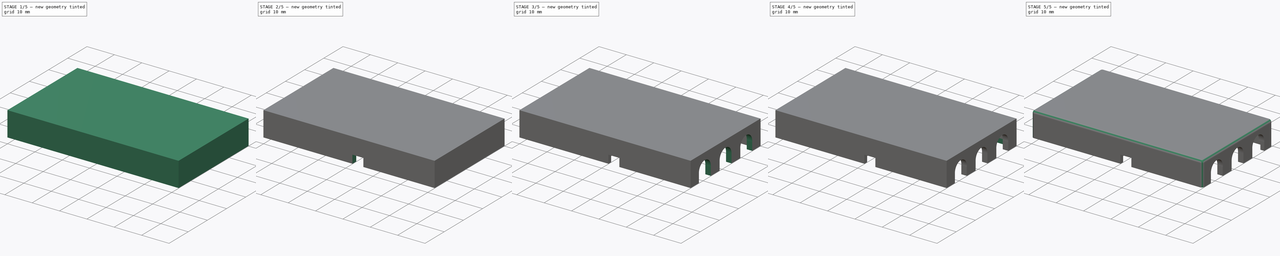
[diagram: build sequence overview — one tinted view per stage of 5, left to right]
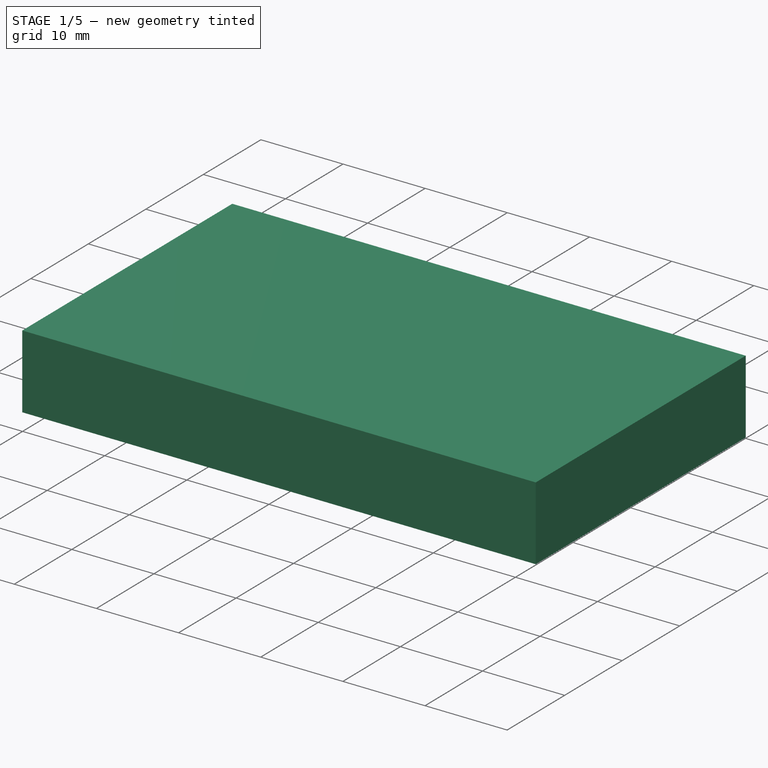
[diagram: stage 1 of 5 — iso view after this stage's code; geometry added in this stage tinted green]
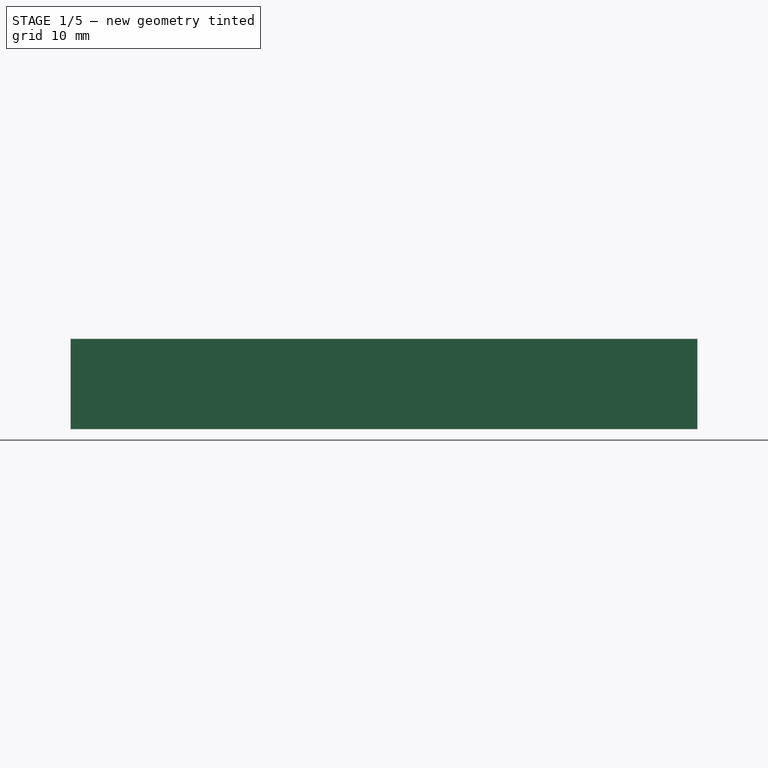
[diagram: stage 1 of 5 — front view after this stage's code; geometry added in this stage tinted green]
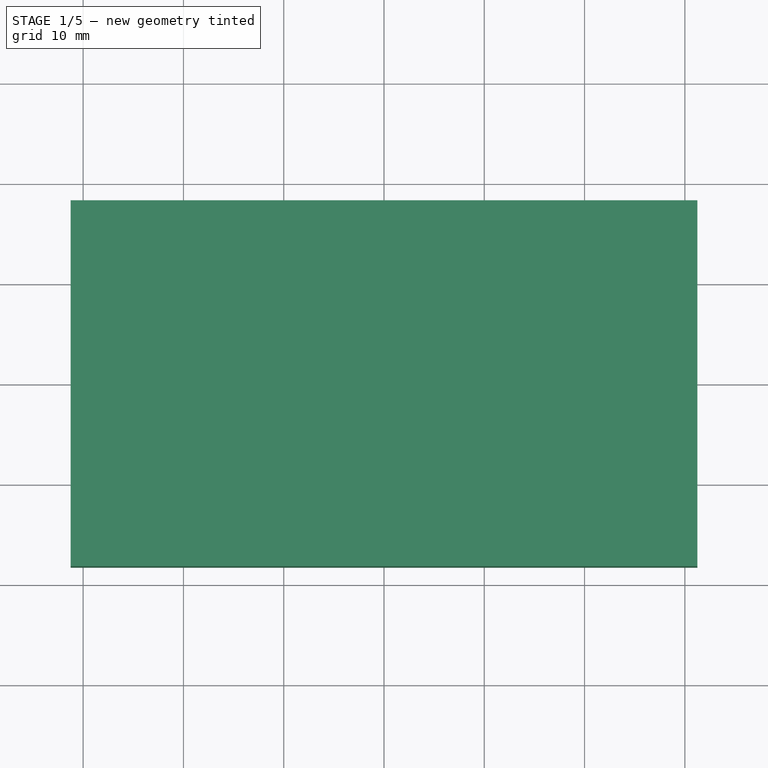
[diagram: stage 1 of 5 — top view after this stage's code; geometry added in this stage tinted green]
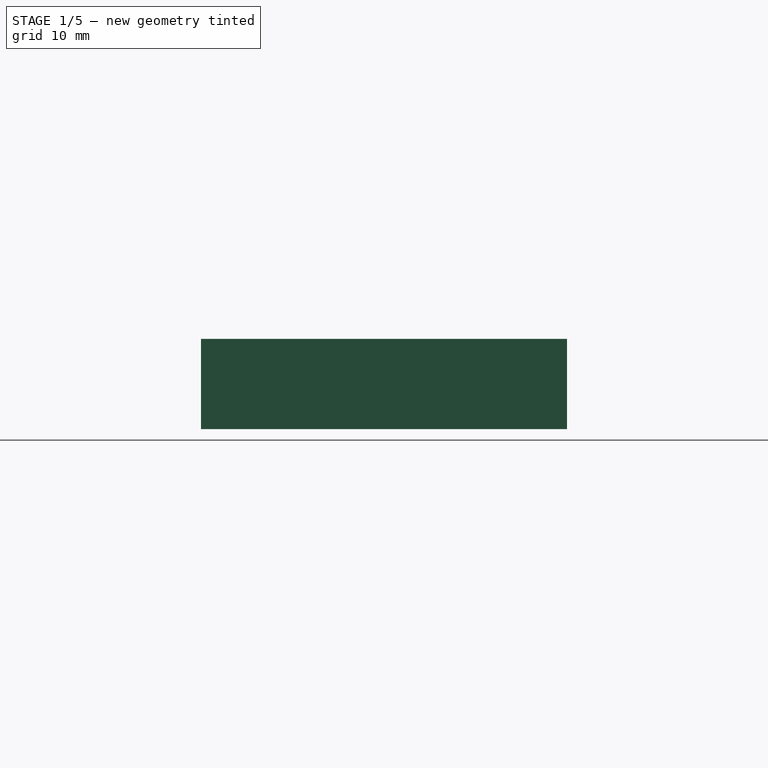
[diagram: stage 1 of 5 — right view after this stage's code; geometry added in this stage tinted green]
FCSTD DOCUMENT  (FreeCAD 0.21R33771 (Git))
Label: UM2S-case-top
License: All rights reserved
LicenseURL: http://en.wikipedia.org/wiki/All_rights_reserved
objects: Sketcher::SketchObject×12, PartDesign::Pocket×10, PartDesign::Fillet×4, PartDesign::Pad×2, PartDesign::Body×1
note: 45 computed .brp shape members not serialized (recipe doc carries the construction recipe); baked Part::Feature solids carry a one-line shape summary decoded from their .brp

FEATURE [Sketcher::SketchObject] Sketch
  FullyConstrained = true
  MapMode = 5
  Support = -> [XY_Plane]
  sketch-geometry (5):
    g0: LineSegment StartX=-31.25 StartY=-18.25 StartZ=0 EndX=-31.25 EndY=18.25 EndZ=0
    g1: LineSegment StartX=-31.25 StartY=18.25 StartZ=0 EndX=31.25 EndY=18.25 EndZ=0
    g2: LineSegment StartX=31.25 StartY=18.25 StartZ=0 EndX=31.25 EndY=-18.25 EndZ=0
    g3: LineSegment StartX=31.25 StartY=-18.25 StartZ=0 EndX=-31.25 EndY=-18.25 EndZ=0
    g4: GeomPoint X=0 Y=0 Z=0
  constraints (12):
    c: Coincident(g0,g1)
    c: Coincident(g1,g2)
    c: Coincident(g2,g3)
    c: Coincident(g3,g0)
    c: Horizontal(g1)
    c: Horizontal(g3)
    c: Vertical(g0)
    c: Vertical(g2)
    c: Symmetric(g1,g0,g4)
    c: Coincident(g4,g-1)
    c: Distance(g3) = 62.5
    c: Distance(g0) = 36.5
FEATURE [PartDesign::Pad] Pad
  Direction = (0,0,1)
  Length = 9
  Length2 = 10
  Profile = -> Sketch
  ReferenceAxis = -> Sketch [N_Axis]
  Type = 0
FEATURE [Sketcher::SketchObject] Sketch001
  FullyConstrained = true
  MapMode = 5
  Placement = pos=(0,0,0) rot=(1,0,0;3.14159rad)
  Support = -> [Pad]
  sketch-geometry (5):
    g0: LineSegment StartX=-29.25 StartY=16.25 StartZ=0 EndX=-29.25 EndY=-16.25 EndZ=0
    g1: LineSegment StartX=-29.25 StartY=-16.25 StartZ=0 EndX=29.25 EndY=-16.25 EndZ=0
    g2: LineSegment StartX=29.25 StartY=-16.25 StartZ=0 EndX=29.25 EndY=16.25 EndZ=0
    g3: LineSegment StartX=29.25 StartY=16.25 StartZ=0 EndX=-29.25 EndY=16.25 EndZ=0
    g4: GeomPoint X=0 Y=0 Z=0
  constraints (12):
    c: Coincident(g0,g1)
    c: Coincident(g1,g2)
    c: Coincident(g2,g3)
    c: Coincident(g3,g0)
    c: Horizontal(g1)
    c: Horizontal(g3)
    c: Vertical(g0)
    c: Vertical(g2)
    c: Symmetric(g1,g0,g4)
    c: Coincident(g4,g-1)
    c: Distance(g3) = 58.5
    c: Distance(g0) = 32.5
FEATURE [PartDesign::Pocket] Pocket
  BaseFeature = -> Pad
  Direction = (0,0,1)
  Length = 7
  Length2 = 5
  Profile = -> Sketch001
  ReferenceAxis = -> Sketch001 [N_Axis]
  Type = 0
FEATURE [Sketcher::SketchObject] Sketch002
  FullyConstrained = false
  MapMode = 5
  Placement = pos=(0,0,7) rot=(1,0,0;3.14159rad)
  Support = -> [Pocket]
  sketch-geometry (1):
    g0: Circle CenterX=-4.03753 CenterY=0 CenterZ=0 NormalX=0 NormalY=0 NormalZ=1 AngleXU=0 Radius=3.09059
  constraints (1):
    c: PointOnObject(g0,g-1)
FEATURE [PartDesign::Pad] Pad001
  BaseFeature = -> Pocket
  Direction = (0,0,-1)
  Length = 6.5
  Length2 = 10
  Profile = -> Sketch002
  ReferenceAxis = -> Sketch002 [N_Axis]
  Type = 0
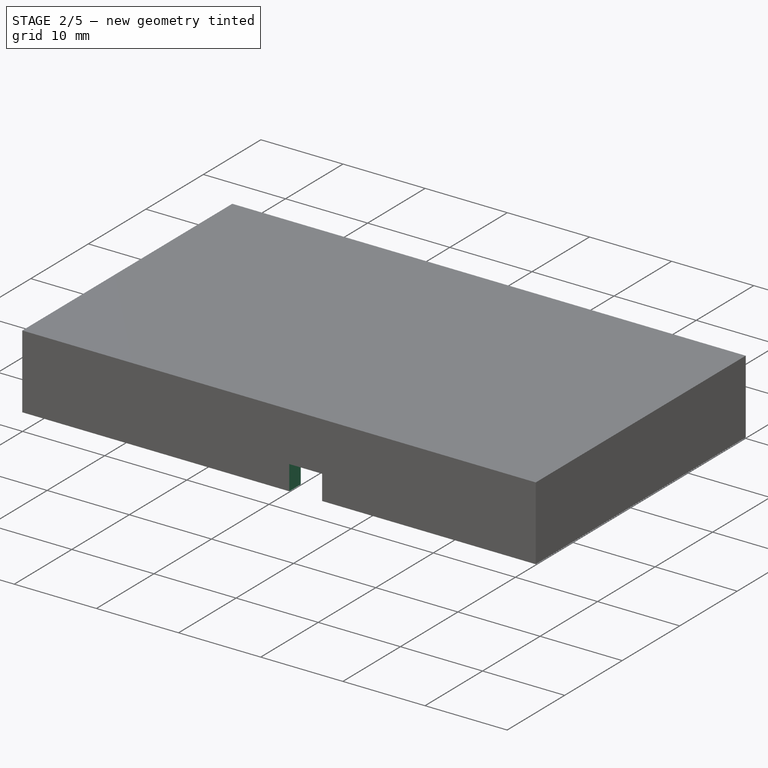
[diagram: stage 2 of 5 — iso view after this stage's code; geometry added in this stage tinted green]
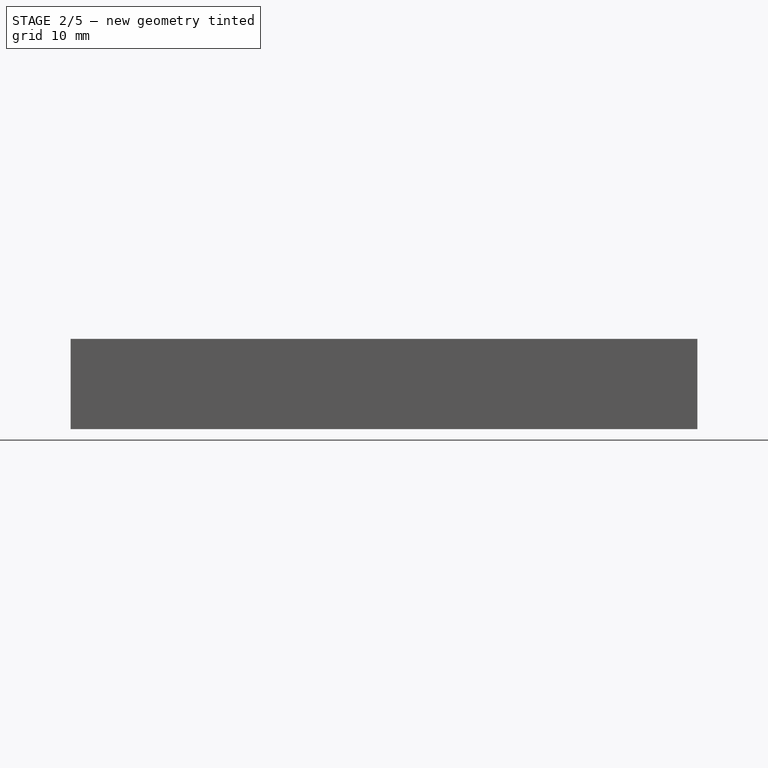
[diagram: stage 2 of 5 — front view after this stage's code; geometry added in this stage tinted green]
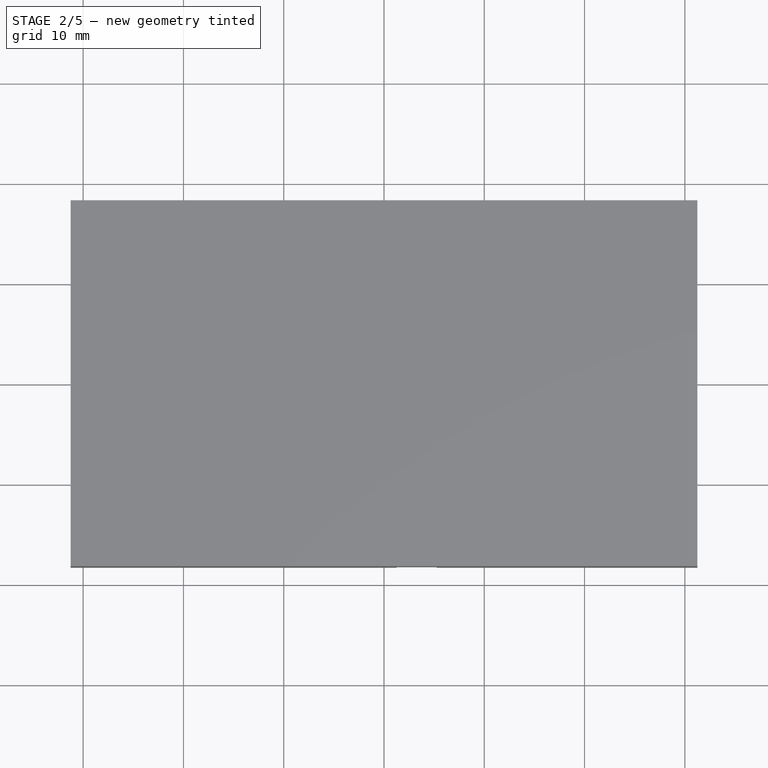
[diagram: stage 2 of 5 — top view after this stage's code; geometry added in this stage tinted green]
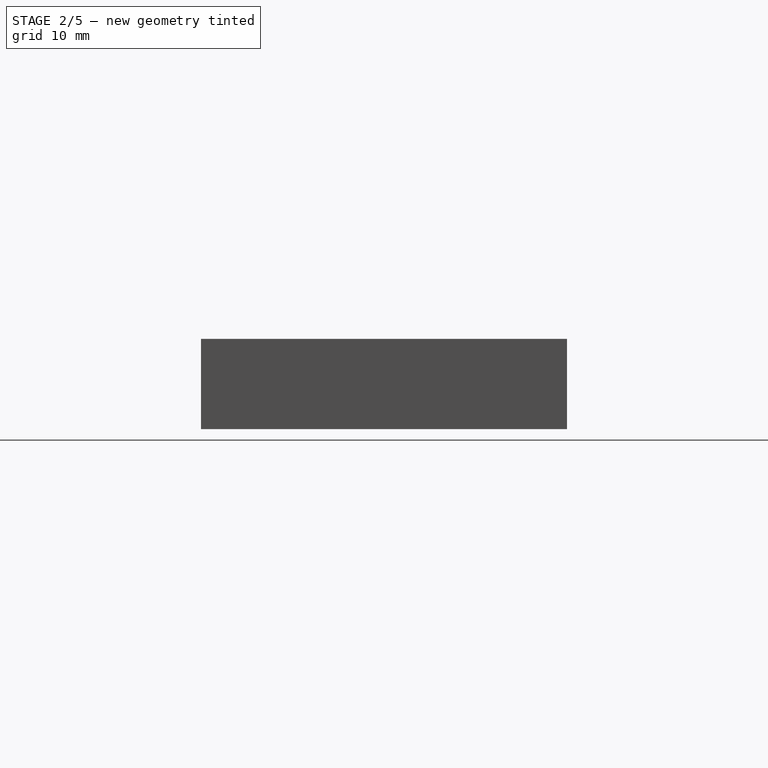
[diagram: stage 2 of 5 — right view after this stage's code; geometry added in this stage tinted green]
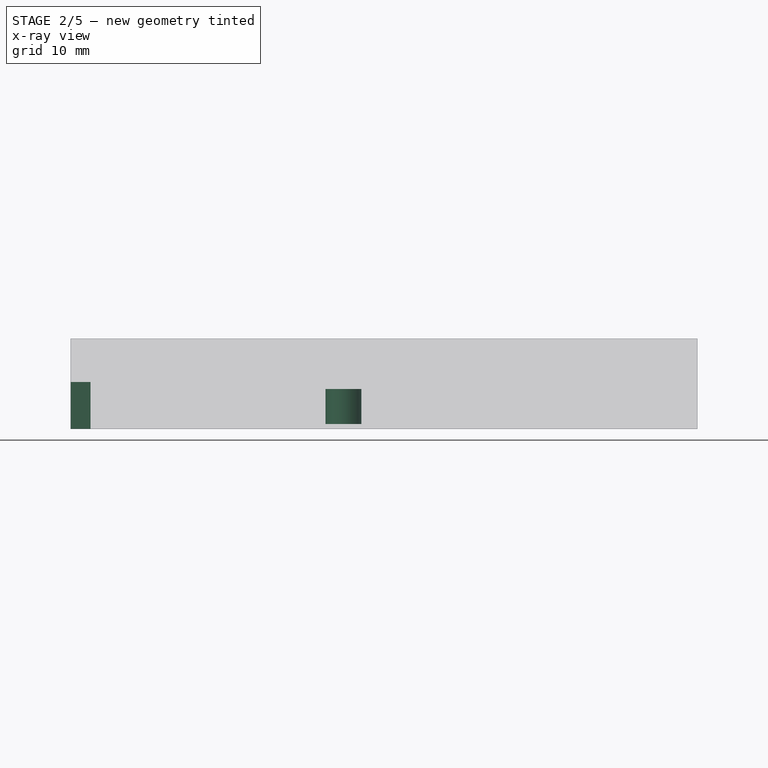
[diagram: stage 2 of 5 — x-ray composite at the front view; earlier geometry ghosted, this stage's added geometry solid]
FEATURE [Sketcher::SketchObject] Sketch003
  FullyConstrained = false
  MapMode = 5
  Placement = pos=(0,0,0.5) rot=(1,0,0;3.14159rad)
  Support = -> [Pad001]
  sketch-geometry (1):
    g0: Circle CenterX=-4.05315 CenterY=0 CenterZ=0 NormalX=0 NormalY=0 NormalZ=1 AngleXU=0 Radius=1.8
  constraints (1):
    c: Diameter(g0) = 3.6
FEATURE [PartDesign::Pocket] Pocket001
  BaseFeature = -> Pad001
  Direction = (0,0,1)
  Length = 3.5
  Length2 = 5
  Profile = -> Sketch003
  ReferenceAxis = -> Sketch003 [N_Axis]
  Type = 0
FEATURE [Sketcher::SketchObject] Sketch004
  ExternalGeometry = -> [Pocket001]
  FullyConstrained = false
  MapMode = 5
  Placement = pos=(0,0,0) rot=(1,0,0;3.14159rad)
  Support = -> [Pocket001]
  sketch-geometry (4):
    g0: LineSegment StartX=1.25 StartY=16.1784 StartZ=0 EndX=5.25 EndY=16.1784 EndZ=0
    g1: LineSegment StartX=5.25 StartY=16.1784 StartZ=0 EndX=5.25 EndY=18.3034 EndZ=0
    g2: LineSegment StartX=5.25 StartY=18.3034 StartZ=0 EndX=1.25 EndY=18.3034 EndZ=0
    g3: LineSegment StartX=1.25 StartY=18.3034 StartZ=0 EndX=1.25 EndY=16.1784 EndZ=0
  constraints (11):
    c: Coincident(g0,g1)
    c: Coincident(g1,g2)
    c: Coincident(g2,g3)
    c: Coincident(g3,g0)
    c: Horizontal(g0)
    c: Horizontal(g2)
    c: Vertical(g1)
    c: Vertical(g3)
    c: Distance(g3) = 2.125
    c: Distance(g-3,g3) = 30.5
    c: Distance(g2) = 4
FEATURE [PartDesign::Pocket] Pocket002
  BaseFeature = -> Pocket001
  Direction = (0,0,1)
  Length = 3
  Length2 = 5
  Profile = -> Sketch004
  ReferenceAxis = -> Sketch004 [N_Axis]
  Type = 0
FEATURE [Sketcher::SketchObject] Sketch005
  FullyConstrained = true
  MapMode = 5
  Placement = pos=(-31.25,0,0) rot=(0.57735,-0.57735,-0.57735;2.0944rad)
  Support = -> [Pocket002]
  sketch-geometry (4):
    g0: LineSegment StartX=-4.6 StartY=0 StartZ=0 EndX=4.6 EndY=0 EndZ=0
    g1: LineSegment StartX=4.6 StartY=0 StartZ=0 EndX=4.6 EndY=4.7 EndZ=0
    g2: LineSegment StartX=4.6 StartY=4.7 StartZ=0 EndX=-4.6 EndY=4.7 EndZ=0
    g3: LineSegment StartX=-4.6 StartY=4.7 StartZ=0 EndX=-4.6 EndY=0 EndZ=0
  constraints (12):
    c: Coincident(g0,g1)
    c: Coincident(g1,g2)
    c: Coincident(g2,g3)
    c: Coincident(g3,g0)
    c: Horizontal(g0)
    c: Horizontal(g2)
    c: Vertical(g1)
    c: Vertical(g3)
    c: PointOnObject(g0,g-1)
    c: Distance(g3) = 4.7
    c: Distance(g-1,g0) = 4.6
    c: Distance(g-1,g0) = 4.6
FEATURE [PartDesign::Pocket] Pocket003
  BaseFeature = -> Pocket002
  Direction = (1,0,0)
  Length = 5
  Length2 = 5
  Profile = -> Sketch005
  ReferenceAxis = -> Sketch005 [N_Axis]
  Type = 0
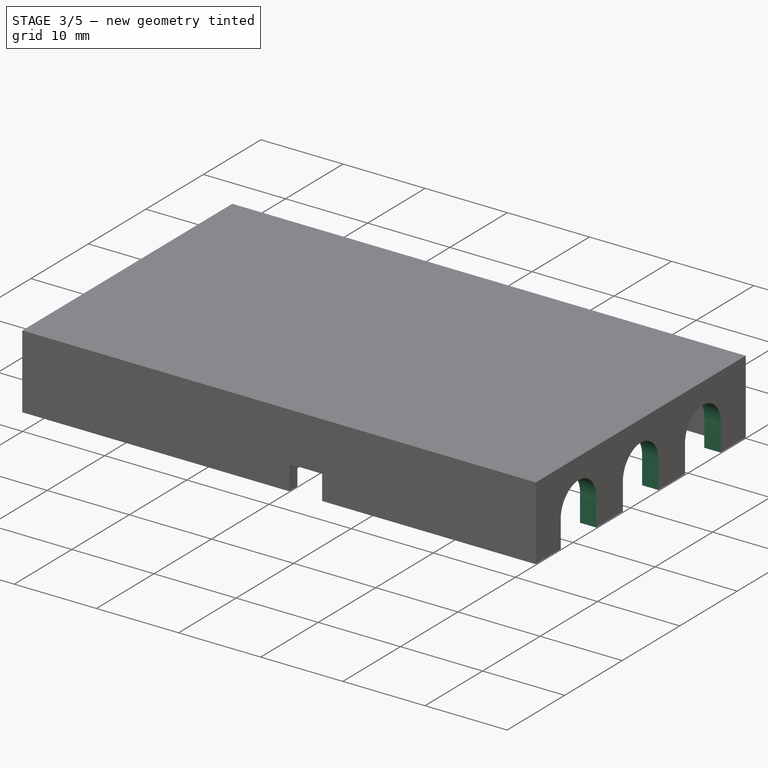
[diagram: stage 3 of 5 — iso view after this stage's code; geometry added in this stage tinted green]
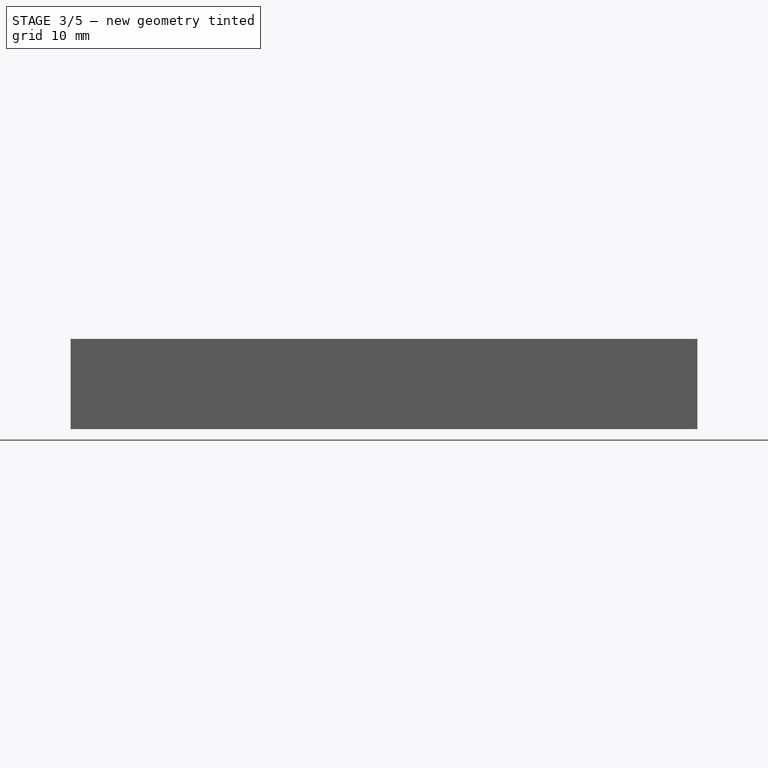
[diagram: stage 3 of 5 — front view after this stage's code; geometry added in this stage tinted green]
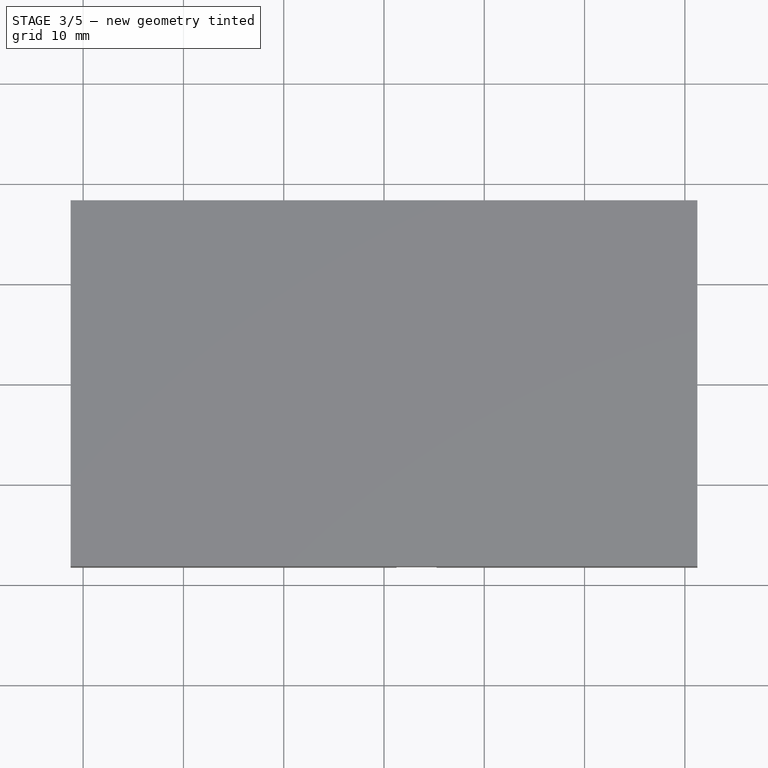
[diagram: stage 3 of 5 — top view after this stage's code; geometry added in this stage tinted green]
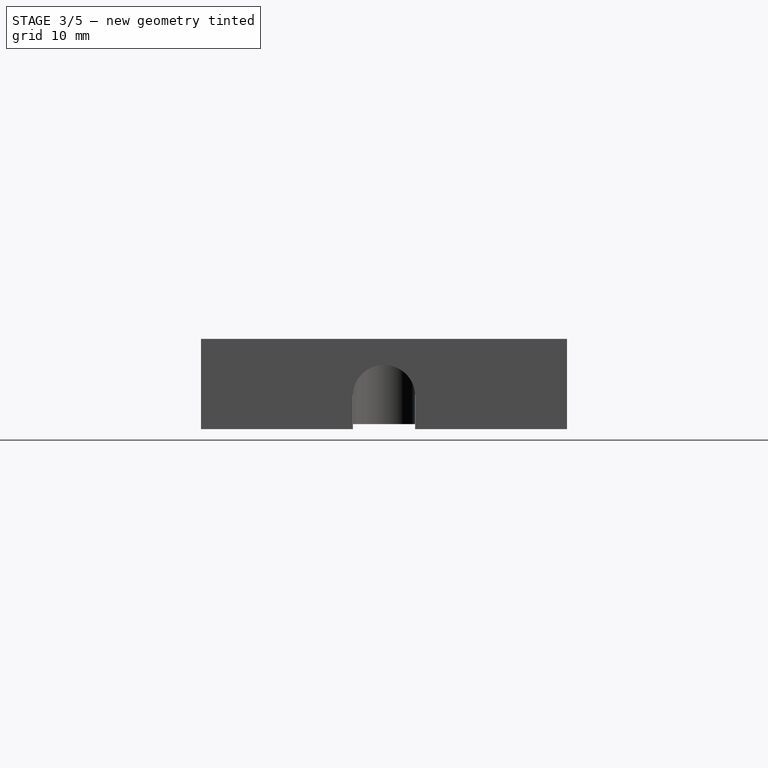
[diagram: stage 3 of 5 — right view after this stage's code; geometry added in this stage tinted green]
FEATURE [PartDesign::Fillet] Fillet
  Base = -> Pocket003 [Edge14]
  BaseFeature = -> Pocket003
  Radius = 1.2
  SupportTransform = false
  UseAllEdges = false
FEATURE [PartDesign::Fillet] Fillet001
  Base = -> Fillet [Edge19]
  BaseFeature = -> Fillet
  Radius = 1.2
  SupportTransform = false
  UseAllEdges = false
FEATURE [Sketcher::SketchObject] Sketch006
  FullyConstrained = false
  MapMode = 5
  Placement = pos=(31.25,0,0) rot=(0.57735,0.57735,0.57735;2.0944rad)
  Support = -> [Fillet001]
  sketch-geometry (12):
    g0: ArcOfCircle CenterX=0 CenterY=3.3 CenterZ=0 NormalX=0 NormalY=0 NormalZ=1 AngleXU=0 Radius=3.10028 StartAngle=6.26981 EndAngle=9.41141
    g1: LineSegment StartX=3.1 StartY=3.25854 StartZ=0 EndX=3.1 EndY=0 EndZ=0
    g2: LineSegment StartX=-3.1 StartY=3.34146 StartZ=0 EndX=-3.1 EndY=0 EndZ=0
    g3: LineSegment StartX=-3.1 StartY=0 StartZ=0 EndX=3.1 EndY=0 EndZ=0
    g4: ArcOfCircle CenterX=-10.8 CenterY=3.3 CenterZ=0 NormalX=0 NormalY=0 NormalZ=1 AngleXU=0 Radius=3.11075 StartAngle=6.20003 EndAngle=9.50793
    g5: LineSegment StartX=-13.9 StartY=3.04164 StartZ=0 EndX=-13.9 EndY=0 EndZ=0
    g6: LineSegment StartX=-7.7 StartY=3.04164 StartZ=0 EndX=-7.7 EndY=0 EndZ=0
    g7: LineSegment StartX=-7.7 StartY=0 StartZ=0 EndX=-13.9 EndY=0 EndZ=0
    g8: ArcOfCircle CenterX=10.8 CenterY=3.3 CenterZ=0 NormalX=0 NormalY=0 NormalZ=1 AngleXU=0 Radius=3.1133 StartAngle=6.19072 EndAngle=9.51724
    g9: LineSegment StartX=7.7 StartY=3.01254 StartZ=0 EndX=7.7 EndY=0 EndZ=0
    g10: LineSegment StartX=13.9 StartY=3.01255 StartZ=0 EndX=13.9 EndY=0 EndZ=0
    g11: LineSegment StartX=13.9 StartY=0 StartZ=0 EndX=7.7 EndY=0 EndZ=0
  constraints (33):
    c: PointOnObject(g0,g-2)
    c: Coincident(g1,g0)
    c: Vertical(g1)
    c: Coincident(g2,g0)
    c: Vertical(g2)
    c: Coincident(g3,g2)
    c: Coincident(g3,g1)
    c: Horizontal(g3)
    c: Coincident(g5,g4)
    c: Vertical(g5)
    c: Coincident(g6,g4)
    c: Vertical(g6)
    c: Coincident(g7,g6)
    c: Coincident(g7,g5)
    c: Horizontal(g7)
    c: Coincident(g9,g8)
    c: Vertical(g9)
    c: Coincident(g10,g8)
    c: Vertical(g10)
    c: Coincident(g11,g9)
    c: Horizontal(g11)
    c: Distance(g-1,g2) = 3.1
    c: Distance(g-1,g1) = 3.1
    c: Distance(g0,g4) = 10.8
    c: Distance(g0,g8) = 10.8
    c: Coincident(g10,g11)
    c: Distance(g9,g10) = 6.2
    c: Distance(g5,g6) = 6.2
    c: Distance(g0,g-1) = 3.3
    c: PointOnObject(g5,g-1)
    c: Distance(g4,g7) = 3.3
    c: PointOnObject(g10,g-1)
    c: Distance(g8,g11) = 3.3
FEATURE [PartDesign::Pocket] Pocket004
  BaseFeature = -> Fillet001
  Direction = (-1,0,0)
  Length = 5
  Length2 = 5
  Profile = -> Sketch006
  ReferenceAxis = -> Sketch006 [N_Axis]
  Type = 0
FEATURE [Sketcher::SketchObject] Sketch007
  ExternalGeometry = -> [Pocket004]
  FullyConstrained = true
  MapMode = 5
  Placement = pos=(0,0,0) rot=(1,0,0;3.14159rad)
  Support = -> [Pocket004]
  sketch-geometry (4):
    g0: LineSegment StartX=-29.25 StartY=16.25 StartZ=0 EndX=1.25 EndY=16.25 EndZ=0
    g1: LineSegment StartX=1.25 StartY=16.25 StartZ=0 EndX=1.25 EndY=16.85 EndZ=0
    g2: LineSegment StartX=1.25 StartY=16.85 StartZ=0 EndX=-29.25 EndY=16.85 EndZ=0
    g3: LineSegment StartX=-29.25 StartY=16.85 StartZ=0 EndX=-29.25 EndY=16.25 EndZ=0
  constraints (10):
    c: Coincident(g0,g1)
    c: Coincident(g1,g2)
    c: Coincident(g2,g3)
    c: Coincident(g3,g0)
    c: Horizontal(g2)
    c: Vertical(g1)
    c: Vertical(g3)
    c: Coincident(g0,g-3)
    c: Distance(g3) = 0.6
    c: Coincident(g-4,g0)
FEATURE [Sketcher::SketchObject] Sketch008
  ExternalGeometry = -> [Pocket004]
  FullyConstrained = true
  MapMode = 5
  Placement = pos=(0,0,0) rot=(1,0,0;3.14159rad)
  Support = -> [Pocket004]
  sketch-geometry (4):
    g0: LineSegment StartX=-29.25 StartY=-16.25 StartZ=0 EndX=29.25 EndY=-16.25 EndZ=0
    g1: LineSegment StartX=29.25 StartY=-16.25 StartZ=0 EndX=29.25 EndY=-16.85 EndZ=0
    g2: LineSegment StartX=29.25 StartY=-16.85 StartZ=0 EndX=-29.25 EndY=-16.85 EndZ=0
    g3: LineSegment StartX=-29.25 StartY=-16.85 StartZ=0 EndX=-29.25 EndY=-16.25 EndZ=0
  constraints (11):
    c: Coincident(g0,g1)
    c: Coincident(g1,g2)
    c: Coincident(g2,g3)
    c: Coincident(g3,g0)
    c: Horizontal(g0)
    c: Horizontal(g2)
    c: Vertical(g1)
    c: Vertical(g3)
    c: Coincident(g0,g-3)
    c: Distance(g0) = 58.5
    c: Distance(g3) = 0.6
FEATURE [Sketcher::SketchObject] Sketch009
  ExternalGeometry = -> [Pocket004]
  FullyConstrained = true
  MapMode = 5
  Placement = pos=(0,0,0) rot=(1,0,0;3.14159rad)
  Support = -> [Pocket004]
  sketch-geometry (4):
    g0: LineSegment StartX=5.25 StartY=16.25 StartZ=0 EndX=29.25 EndY=16.25 EndZ=0
    g1: LineSegment StartX=29.25 StartY=16.25 StartZ=0 EndX=29.25 EndY=16.85 EndZ=0
    g2: LineSegment StartX=29.25 StartY=16.85 StartZ=0 EndX=5.25 EndY=16.85 EndZ=0
    g3: LineSegment StartX=5.25 StartY=16.85 StartZ=0 EndX=5.25 EndY=16.25 EndZ=0
  constraints (11):
    c: Coincident(g0,g1)
    c: Coincident(g1,g2)
    c: Coincident(g2,g3)
    c: Coincident(g3,g0)
    c: Horizontal(g0)
    c: Horizontal(g2)
    c: Vertical(g1)
    c: Vertical(g3)
    c: Coincident(g0,g-3)
    c: Distance(g3) = 0.6
    c: Distance(g0) = 24
FEATURE [PartDesign::Pocket] Pocket005
  BaseFeature = -> Pocket004
  Direction = (0,0,1)
  Length = 2
  Length2 = 5
  Profile = -> Sketch007
  ReferenceAxis = -> Sketch007 [N_Axis]
  Type = 0
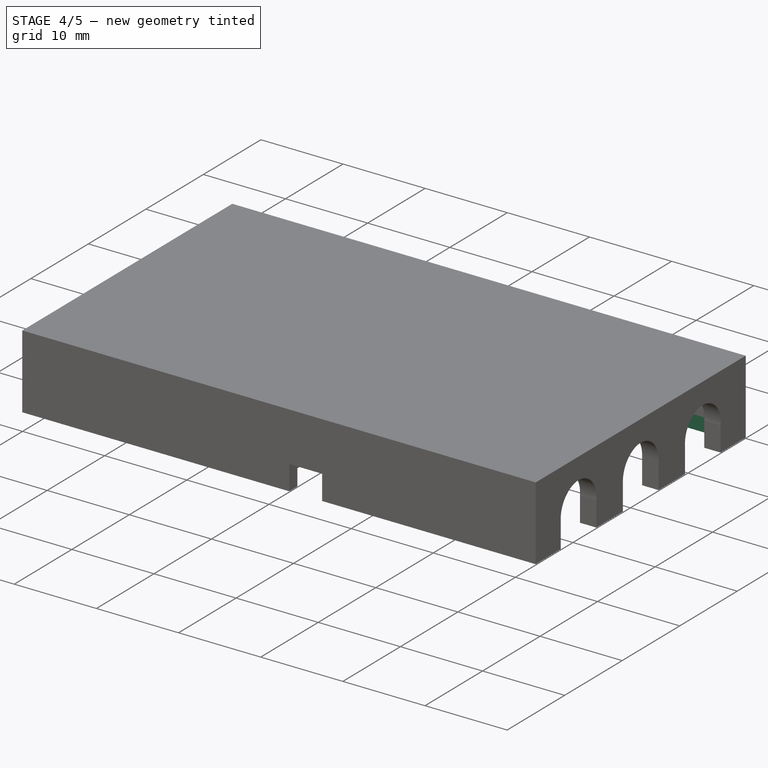
[diagram: stage 4 of 5 — iso view after this stage's code; geometry added in this stage tinted green]
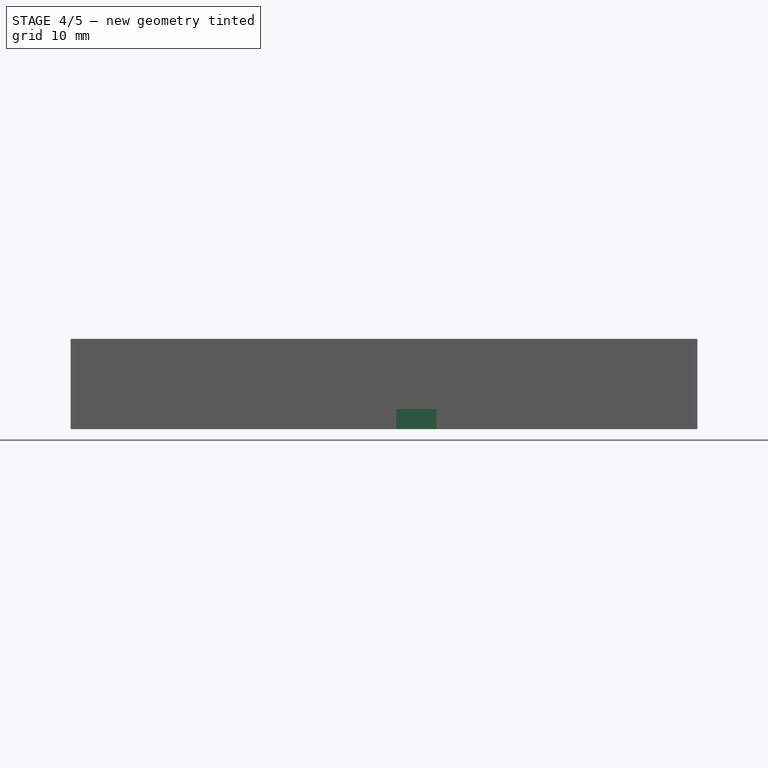
[diagram: stage 4 of 5 — front view after this stage's code; geometry added in this stage tinted green]
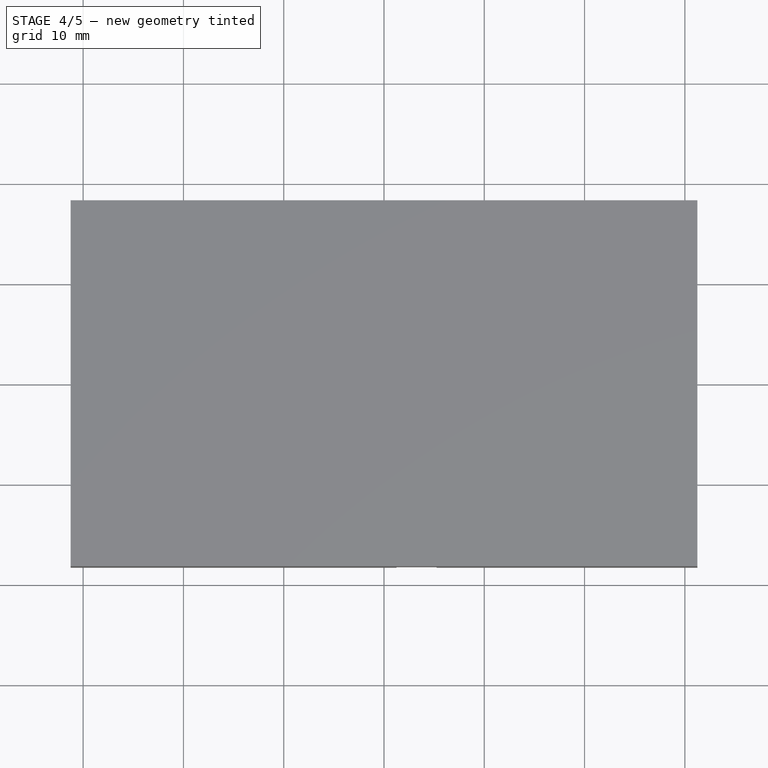
[diagram: stage 4 of 5 — top view after this stage's code; geometry added in this stage tinted green]
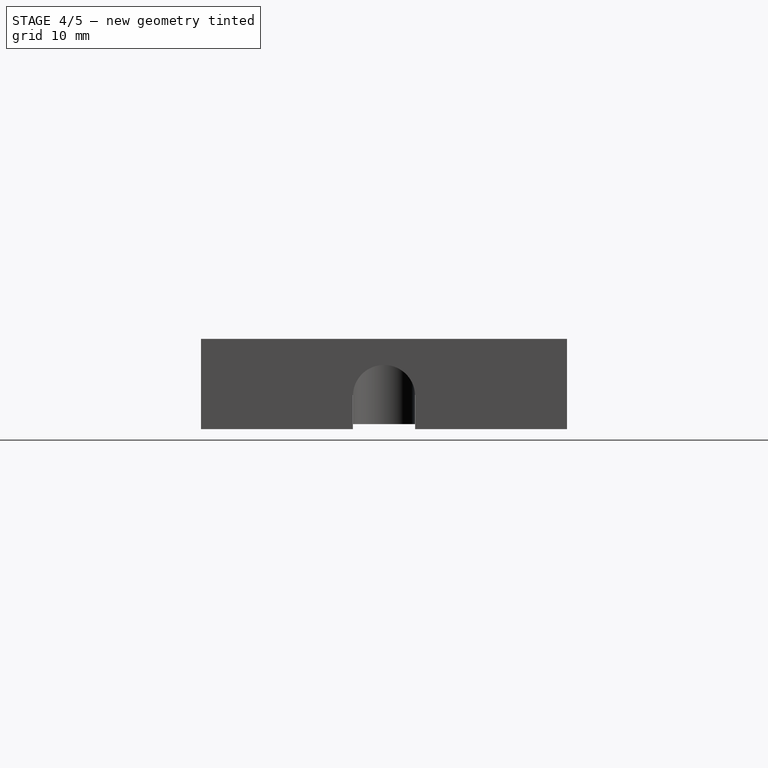
[diagram: stage 4 of 5 — right view after this stage's code; geometry added in this stage tinted green]
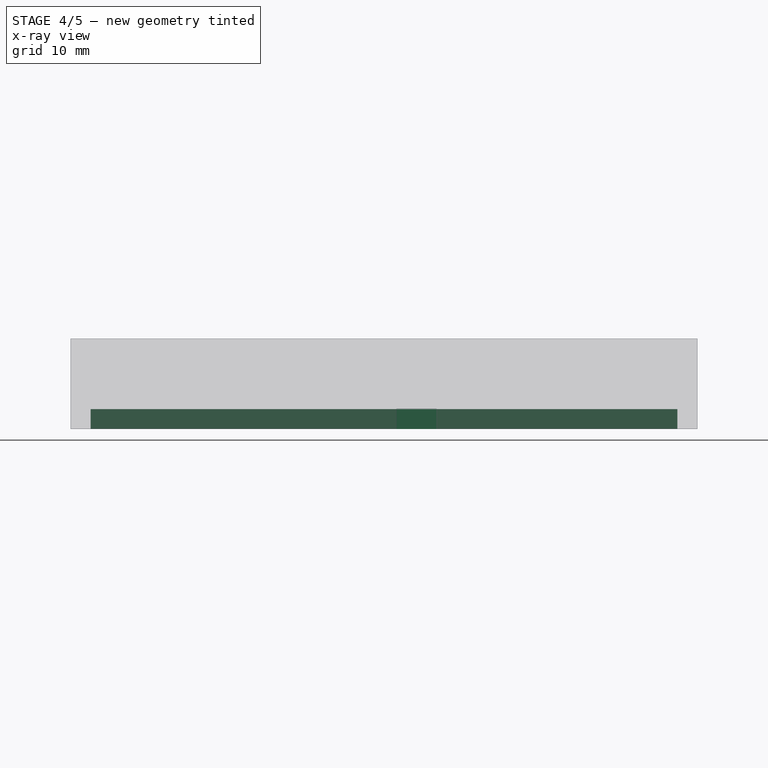
[diagram: stage 4 of 5 — x-ray composite at the front view; earlier geometry ghosted, this stage's added geometry solid]
FEATURE [PartDesign::Pocket] Pocket006
  BaseFeature = -> Pocket005
  Direction = (0,0,1)
  Length = 2
  Length2 = 5
  Profile = -> Sketch008
  ReferenceAxis = -> Sketch008 [N_Axis]
  Type = 0
FEATURE [PartDesign::Pocket] Pocket007
  BaseFeature = -> Pocket006
  Direction = (0,0,1)
  Length = 2
  Length2 = 5
  Profile = -> Sketch009
  ReferenceAxis = -> Sketch009 [N_Axis]
  Type = 0
FEATURE [Sketcher::SketchObject] Sketch010
  ExternalGeometry = -> [Pocket007]
  FullyConstrained = true
  MapMode = 5
  Placement = pos=(0,0,0) rot=(1,0,0;3.14159rad)
  Support = -> [Pocket007]
  sketch-geometry (4):
    g0: LineSegment StartX=29.25 StartY=16.85 StartZ=0 EndX=29.85 EndY=16.85 EndZ=0
    g1: LineSegment StartX=29.85 StartY=16.85 StartZ=0 EndX=29.85 EndY=13.85 EndZ=0
    g2: LineSegment StartX=29.85 StartY=13.85 StartZ=0 EndX=29.25 EndY=13.85 EndZ=0
    g3: LineSegment StartX=29.25 StartY=13.85 StartZ=0 EndX=29.25 EndY=16.85 EndZ=0
  constraints (11):
    c: Coincident(g0,g1)
    c: Coincident(g1,g2)
    c: Coincident(g2,g3)
    c: Coincident(g3,g0)
    c: Horizontal(g0)
    c: Horizontal(g2)
    c: Vertical(g1)
    c: Vertical(g3)
    c: Coincident(g0,g-3)
    c: Distance(g0) = 0.6
    c: Distance(g1) = 3
FEATURE [PartDesign::Pocket] Pocket008
  BaseFeature = -> Pocket007
  Direction = (0,0,1)
  Length = 2
  Length2 = 5
  Profile = -> Sketch010
  ReferenceAxis = -> Sketch010 [N_Axis]
  Type = 0
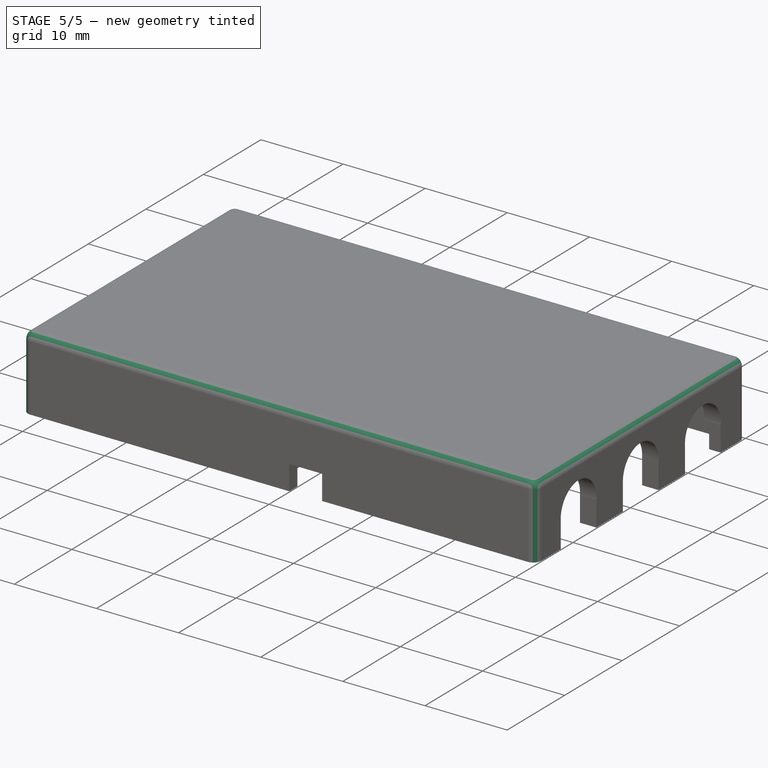
[diagram: stage 5 of 5 — iso view after this stage's code; geometry added in this stage tinted green]
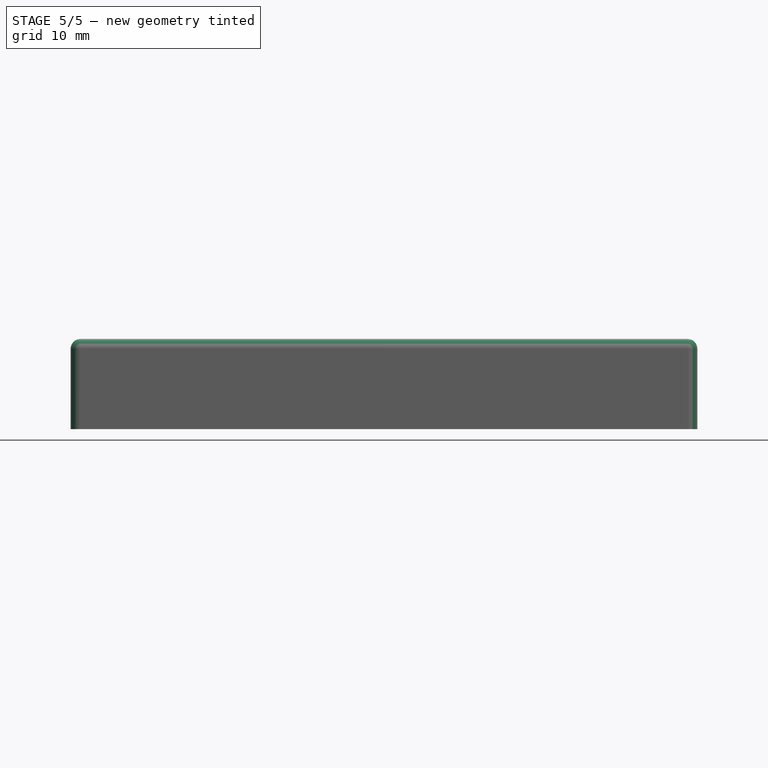
[diagram: stage 5 of 5 — front view after this stage's code; geometry added in this stage tinted green]
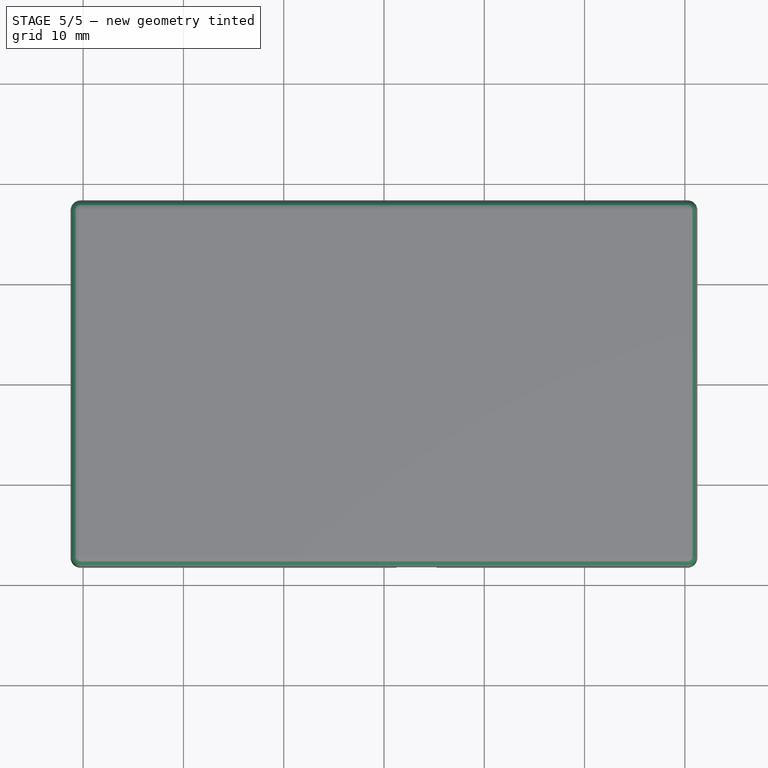
[diagram: stage 5 of 5 — top view after this stage's code; geometry added in this stage tinted green]
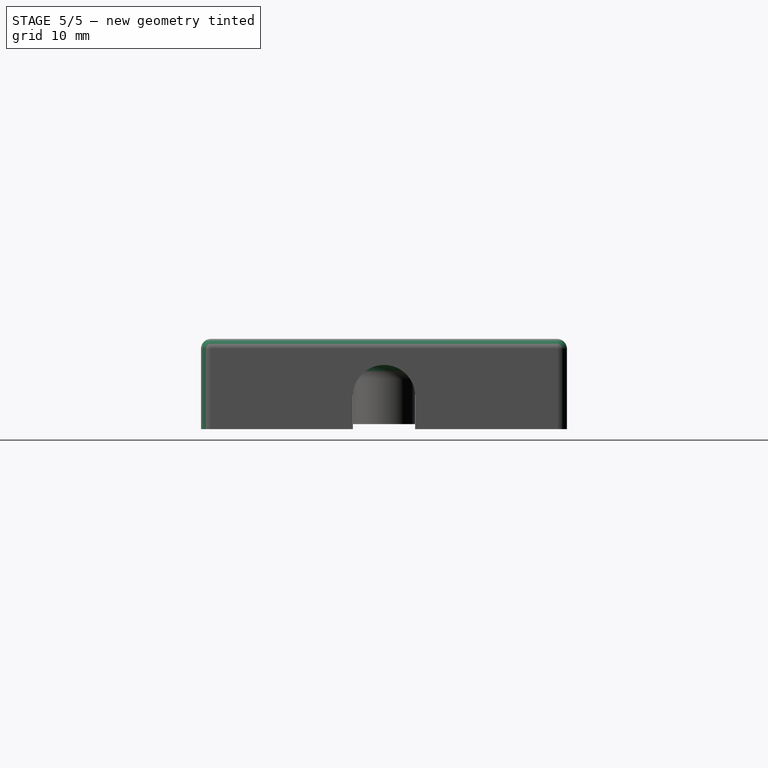
[diagram: stage 5 of 5 — right view after this stage's code; geometry added in this stage tinted green]
FEATURE [Sketcher::SketchObject] Sketch011
  ExternalGeometry = -> [Pocket008]
  FullyConstrained = true
  MapMode = 5
  Placement = pos=(0,0,0) rot=(1,0,0;3.14159rad)
  Support = -> [Pocket008]
  sketch-geometry (4):
    g0: LineSegment StartX=29.25 StartY=-16.85 StartZ=0 EndX=29.85 EndY=-16.85 EndZ=0
    g1: LineSegment StartX=29.85 StartY=-16.85 StartZ=0 EndX=29.85 EndY=-13.85 EndZ=0
    g2: LineSegment StartX=29.85 StartY=-13.85 StartZ=0 EndX=29.25 EndY=-13.85 EndZ=0
    g3: LineSegment StartX=29.25 StartY=-13.85 StartZ=0 EndX=29.25 EndY=-16.85 EndZ=0
  constraints (11):
    c: Coincident(g0,g1)
    c: Coincident(g1,g2)
    c: Coincident(g2,g3)
    c: Coincident(g3,g0)
    c: Horizontal(g0)
    c: Horizontal(g2)
    c: Vertical(g1)
    c: Vertical(g3)
    c: Coincident(g0,g-3)
    c: Distance(g0) = 0.6
    c: Distance(g1) = 3
FEATURE [PartDesign::Pocket] Pocket009
  BaseFeature = -> Pocket008
  Direction = (0,0,1)
  Length = 2
  Length2 = 5
  Profile = -> Sketch011
  ReferenceAxis = -> Sketch011 [N_Axis]
  Type = 0
FEATURE [PartDesign::Fillet] Fillet002
  Base = -> Pocket009 [Edge97]
  BaseFeature = -> Pocket009
  Radius = 2
  SupportTransform = false
  UseAllEdges = false
FEATURE [PartDesign::Fillet] Fillet003
  Base = -> Fillet002 [Edge122,Edge127,Edge123,Edge119,Edge120,Edge116,Edge118,Edge117]
  BaseFeature = -> Fillet002
  Radius = 1
  SupportTransform = false
  UseAllEdges = false
FEATURE [PartDesign::Body] Body
  Group = -> [Sketch,Pad,Sketch001,Pocket,Sketch002,Pad001,Sketch003,Pocket001,Sketch004,Pocket002,Sketch005,Pocket003,Fillet,Fillet001,Sketch006,Pocket004,Sketch007,Sketch008,Sketch009,Pocket005,Pocket006,Pocket007,Sketch010,Pocket008,Sketch011,Pocket009,Fillet002,Fillet003]
  Origin = -> Origin
  Tip = -> Fillet003
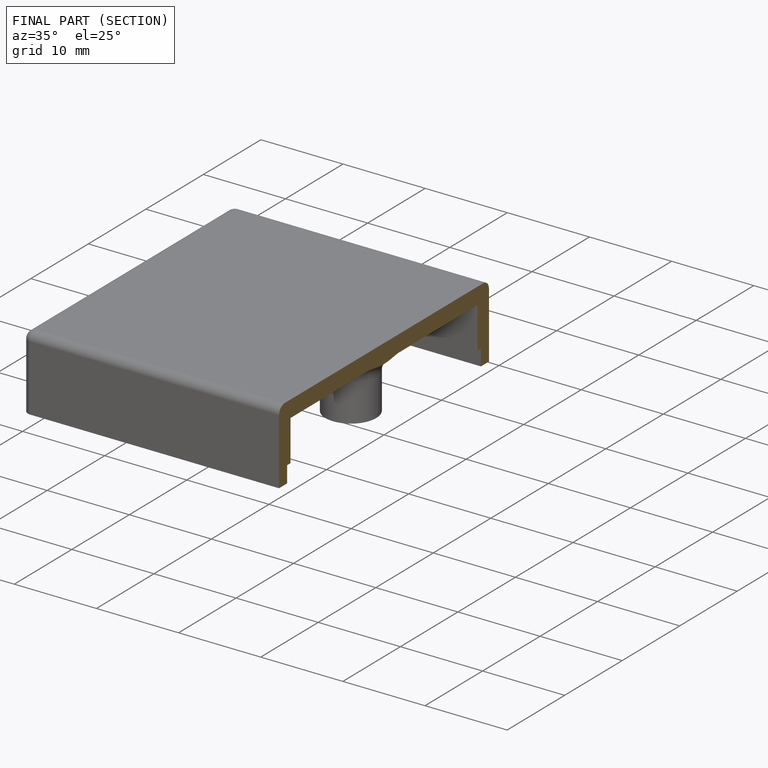
[diagram: finished part — half-section view (interior)]
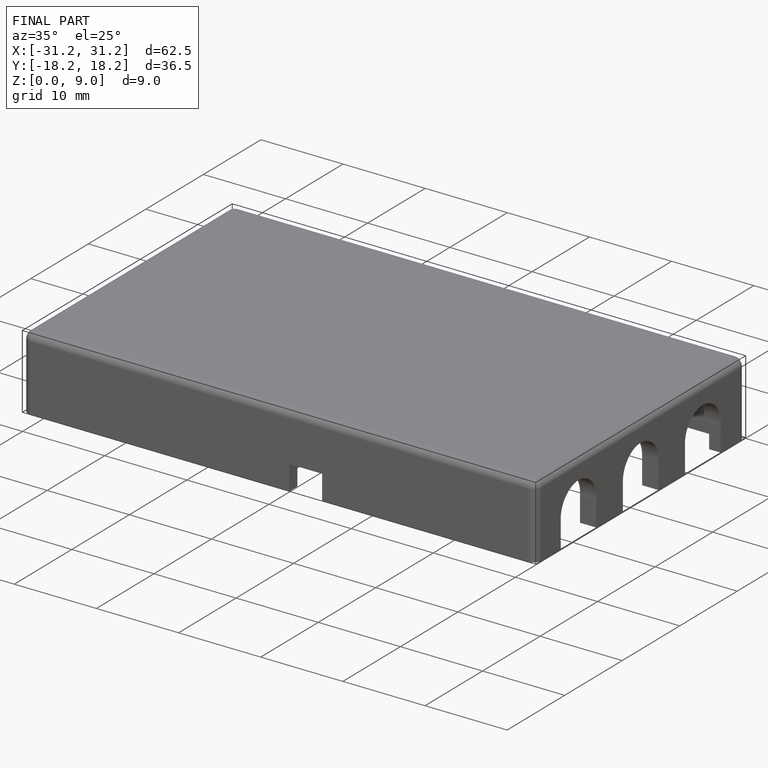
[diagram: finished part — iso view with bounding-box wireframe]
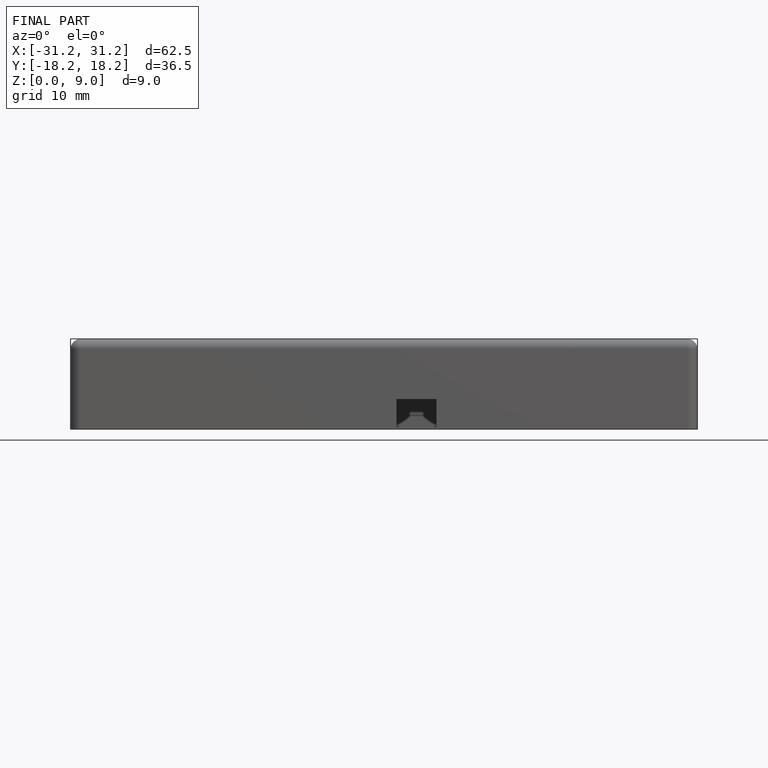
[diagram: finished part — front view with bounding-box wireframe]
